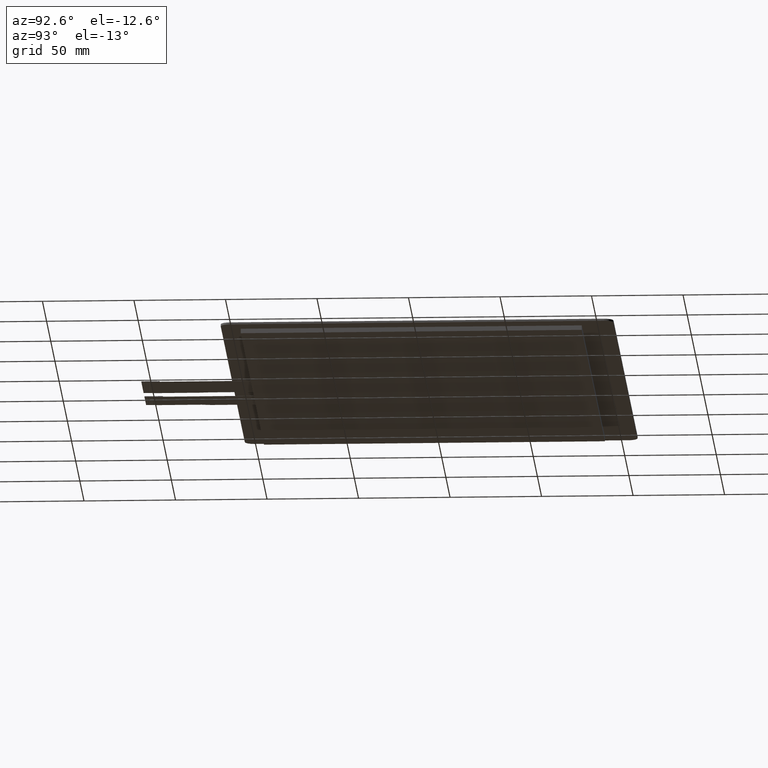
[diagram: clean part render]
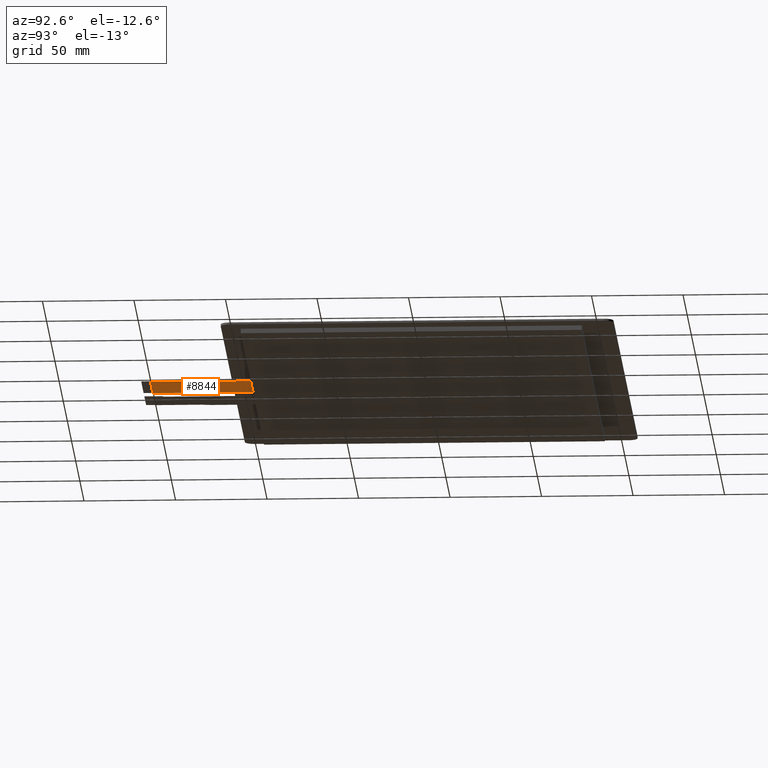
[diagram: same view with one face highlighted and labeled with its STEP entity id]
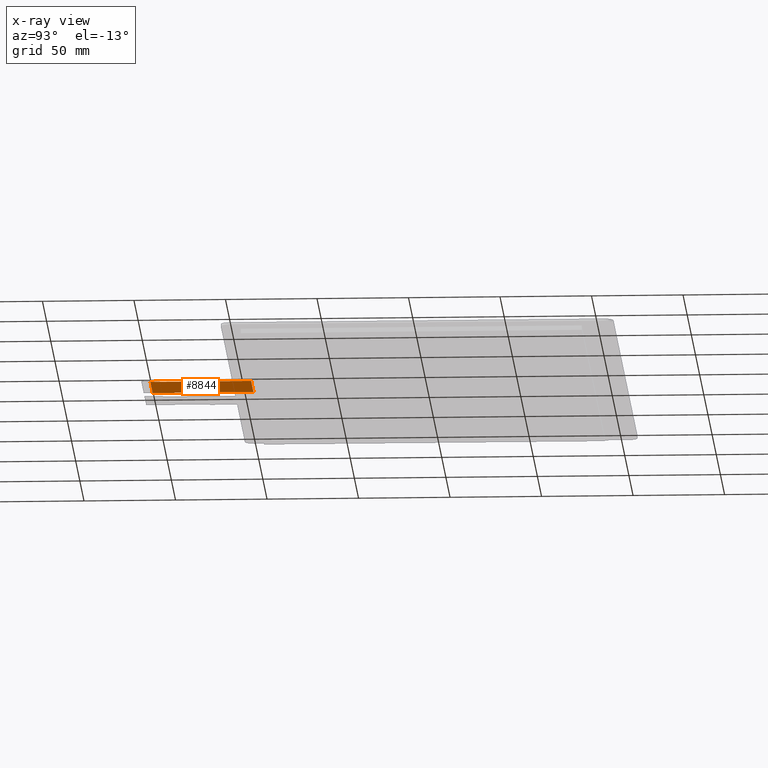
[diagram: x-ray of the same camera — body ghosted, the highlighted face saturated]
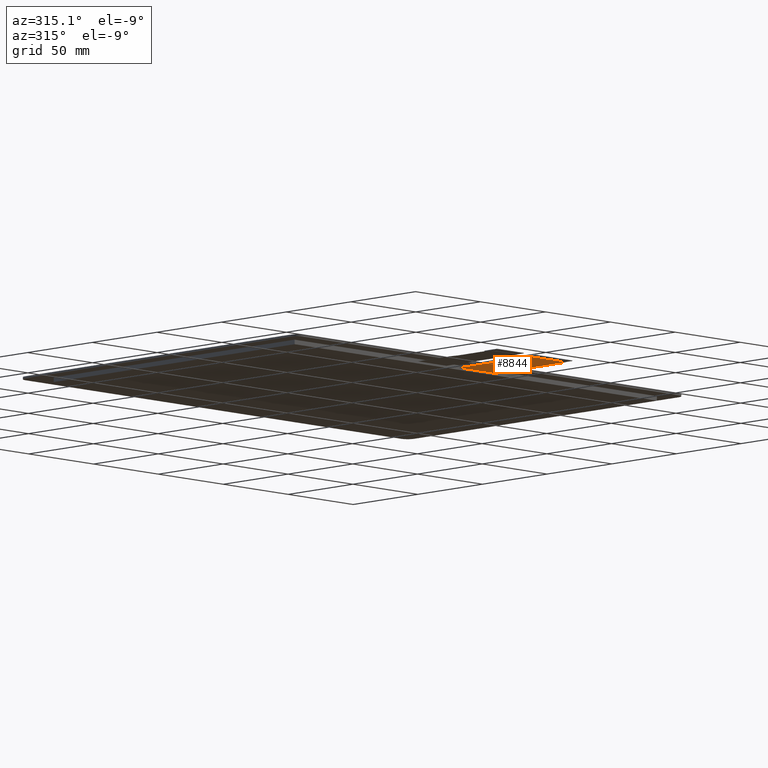
[diagram: same view with one face highlighted and labeled with its STEP entity id]
A machine part, auxiliary view. The second image highlights one B-rep face of the part: STEP entity #8844.
The next image is the same camera in x-ray: the body ghosted, the highlighted face saturated — about 0% of this face is hidden behind the body in this view.
A second angle (auxiliary view) of the same face is appended — the face is thin or edge-on in the first view.
In plain terms, the highlighted planar face has unit normal (0, 0, -1).
Its self-contained STEP definition (entity closure, byte-faithful):
#477=FACE_OUTER_BOUND('',#904,.T.);
#904=EDGE_LOOP('',(#7939,#7940,#7941,#7942,#7943,#7944));
#960=LINE('',#11538,#2205);
#2114=LINE('',#13846,#3359);
#2130=LINE('',#13878,#3375);
#2140=LINE('',#13900,#3385);
#2143=LINE('',#13904,#3388);
#2145=LINE('',#13908,#3390);
#2205=VECTOR('',#9409,10.);
#3359=VECTOR('',#11329,10.);
#3375=VECTOR('',#11353,10.);
#3385=VECTOR('',#11375,10.);
#3388=VECTOR('',#11380,10.);
#3390=VECTOR('',#11386,10.);
#3447=VERTEX_POINT('',#11535);
#3448=VERTEX_POINT('',#11537);
#4219=VERTEX_POINT('',#13844);
#4231=VERTEX_POINT('',#13876);
#4236=VERTEX_POINT('',#13897);
#4237=VERTEX_POINT('',#13899);
#4298=EDGE_CURVE('',#3448,#3447,#960,.T.);
#5452=EDGE_CURVE('',#3447,#4219,#2114,.T.);
#5468=EDGE_CURVE('',#4219,#4231,#2130,.T.);
#5478=EDGE_CURVE('',#4237,#4236,#2140,.T.);
#5481=EDGE_CURVE('',#4231,#4237,#2143,.T.);
#5483=EDGE_CURVE('',#3448,#4236,#2145,.T.);
#7939=ORIENTED_EDGE('',*,*,#5452,.T.);
#7940=ORIENTED_EDGE('',*,*,#5468,.T.);
#7941=ORIENTED_EDGE('',*,*,#5481,.T.);
#7942=ORIENTED_EDGE('',*,*,#5478,.T.);
#7943=ORIENTED_EDGE('',*,*,#5483,.F.);
#7944=ORIENTED_EDGE('',*,*,#4298,.T.);
#8419=PLANE('',#9301);
#8844=ADVANCED_FACE('',(#477),#8419,.T.);
#9301=AXIS2_PLACEMENT_3D('',#13907,#11384,#11385);
#9409=DIRECTION('',(2.96059473233375E-16,-1.,0.));
#11329=DIRECTION('',(-1.,0.,0.));
#11353=DIRECTION('',(-4.4114822170536E-16,1.,0.));
#11375=DIRECTION('',(-1.85037170770859E-16,1.,0.));
#11380=DIRECTION('',(0.0858883421530125,0.996304768974939,0.));
#11384=DIRECTION('center_axis',(0.,0.,-1.));
#11385=DIRECTION('ref_axis',(-1.,0.,0.));
#11386=DIRECTION('',(-1.,-1.909376753207E-16,0.));
#11535=CARTESIAN_POINT('',(13.7,-151.7,-1.35));
#11537=CARTESIAN_POINT('',(13.7,-96.7,-1.35));
#11538=CARTESIAN_POINT('',(13.7,-156.7,-1.35));
#13844=CARTESIAN_POINT('',(-14.3,-151.7,-1.35));
#13846=CARTESIAN_POINT('',(6.70000000000001,-151.7,-1.35));
#13876=CARTESIAN_POINT('',(-14.3,-126.5,-1.35));
#13878=CARTESIAN_POINT('',(-14.3,-126.5,-1.35));
#13897=CARTESIAN_POINT('',(-13.8,-96.7,-1.35));
#13899=CARTESIAN_POINT('',(-13.8,-120.7,-1.35));
#13900=CARTESIAN_POINT('',(-13.8,-96.7,-1.35));
#13904=CARTESIAN_POINT('',(-13.8,-120.7,-1.35));
#13907=CARTESIAN_POINT('Origin',(-0.299999999999985,-126.7,-1.35));
#13908=CARTESIAN_POINT('',(69.1,-96.7,-1.35));